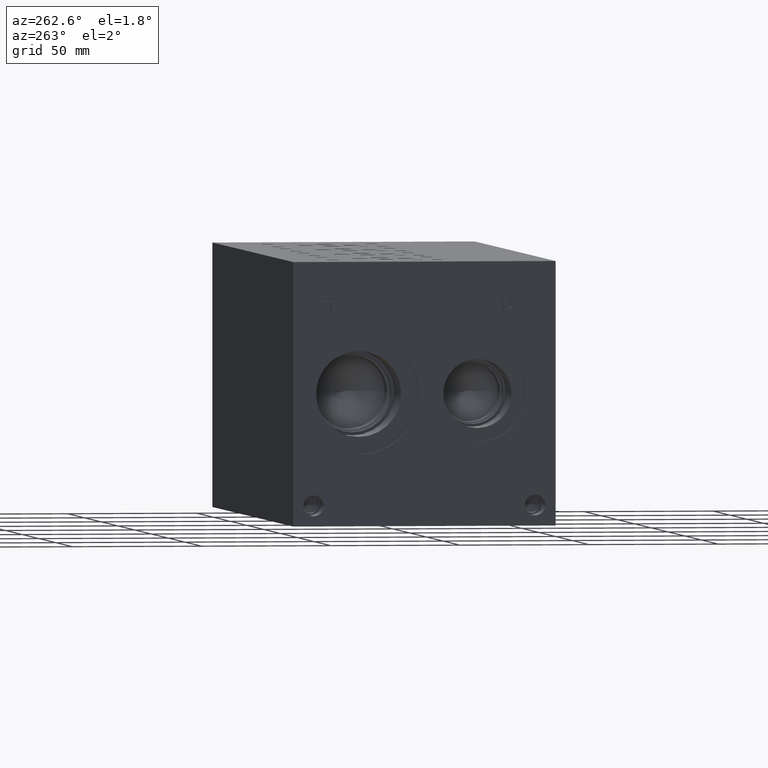
[diagram: clean part render]
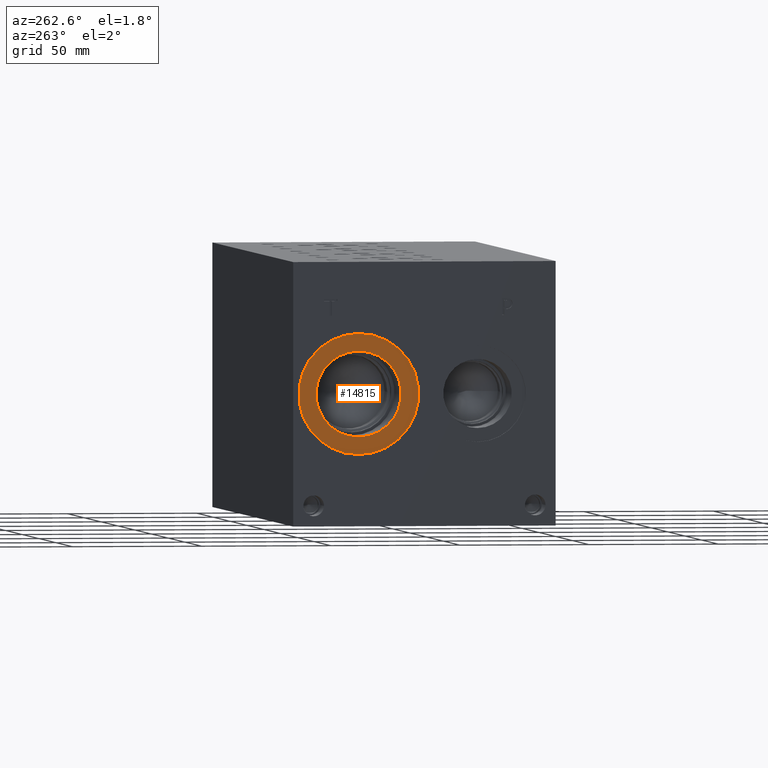
[diagram: same view with one face highlighted and labeled with its STEP entity id]
A machine part, auxiliary view. The second image highlights one B-rep face of the part: STEP entity #14815.
In plain terms, the highlighted planar face has unit normal (1, 0, 0).
Its self-contained STEP definition (entity closure, byte-faithful):
#572=CIRCLE('',#15649,23.2791);
#573=CIRCLE('',#15650,23.2791);
#574=CIRCLE('',#15652,16.5);
#575=CIRCLE('',#15653,16.5);
#1199=FACE_BOUND('',#2776,.T.);
#1908=FACE_OUTER_BOUND('',#2775,.T.);
#2775=EDGE_LOOP('',(#12598,#12599));
#2776=EDGE_LOOP('',(#12600,#12601));
#6790=VERTEX_POINT('',#25094);
#6791=VERTEX_POINT('',#25096);
#6792=VERTEX_POINT('',#25100);
#6793=VERTEX_POINT('',#25101);
#8796=EDGE_CURVE('',#6790,#6791,#572,.T.);
#8797=EDGE_CURVE('',#6791,#6790,#573,.T.);
#8798=EDGE_CURVE('',#6792,#6793,#574,.T.);
#8799=EDGE_CURVE('',#6793,#6792,#575,.T.);
#12598=ORIENTED_EDGE('',*,*,#8797,.F.);
#12599=ORIENTED_EDGE('',*,*,#8796,.F.);
#12600=ORIENTED_EDGE('',*,*,#8798,.T.);
#12601=ORIENTED_EDGE('',*,*,#8799,.T.);
#13619=PLANE('',#15651);
#14815=ADVANCED_FACE('',(#1908,#1199),#13619,.F.);
#15649=AXIS2_PLACEMENT_3D('',#25097,#18604,#18605);
#15650=AXIS2_PLACEMENT_3D('',#25098,#18606,#18607);
#15651=AXIS2_PLACEMENT_3D('',#25099,#18608,#18609);
#15652=AXIS2_PLACEMENT_3D('',#25102,#18610,#18611);
#15653=AXIS2_PLACEMENT_3D('',#25103,#18612,#18613);
#18604=DIRECTION('center_axis',(1.,0.,0.));
#18605=DIRECTION('ref_axis',(0.,0.,-1.));
#18606=DIRECTION('center_axis',(1.,0.,0.));
#18607=DIRECTION('ref_axis',(0.,0.,-1.));
#18608=DIRECTION('center_axis',(1.,0.,0.));
#18609=DIRECTION('ref_axis',(0.,0.,-1.));
#18610=DIRECTION('center_axis',(1.,0.,0.));
#18611=DIRECTION('ref_axis',(0.,0.,-1.));
#18612=DIRECTION('center_axis',(1.,0.,0.));
#18613=DIRECTION('ref_axis',(0.,0.,-1.));
#25094=CARTESIAN_POINT('',(0.7874,76.2,27.5209));
#25096=CARTESIAN_POINT('',(0.7874,76.2,74.0791));
#25097=CARTESIAN_POINT('Origin',(0.7874,76.2,50.8));
#25098=CARTESIAN_POINT('Origin',(0.7874,76.2,50.8));
#25099=CARTESIAN_POINT('Origin',(0.7874,76.2,67.3));
#25100=CARTESIAN_POINT('',(0.7874,76.2,67.3));
#25101=CARTESIAN_POINT('',(0.7874,76.2,34.3));
#25102=CARTESIAN_POINT('Origin',(0.7874,76.2,50.8));
#25103=CARTESIAN_POINT('Origin',(0.7874,76.2,50.8));